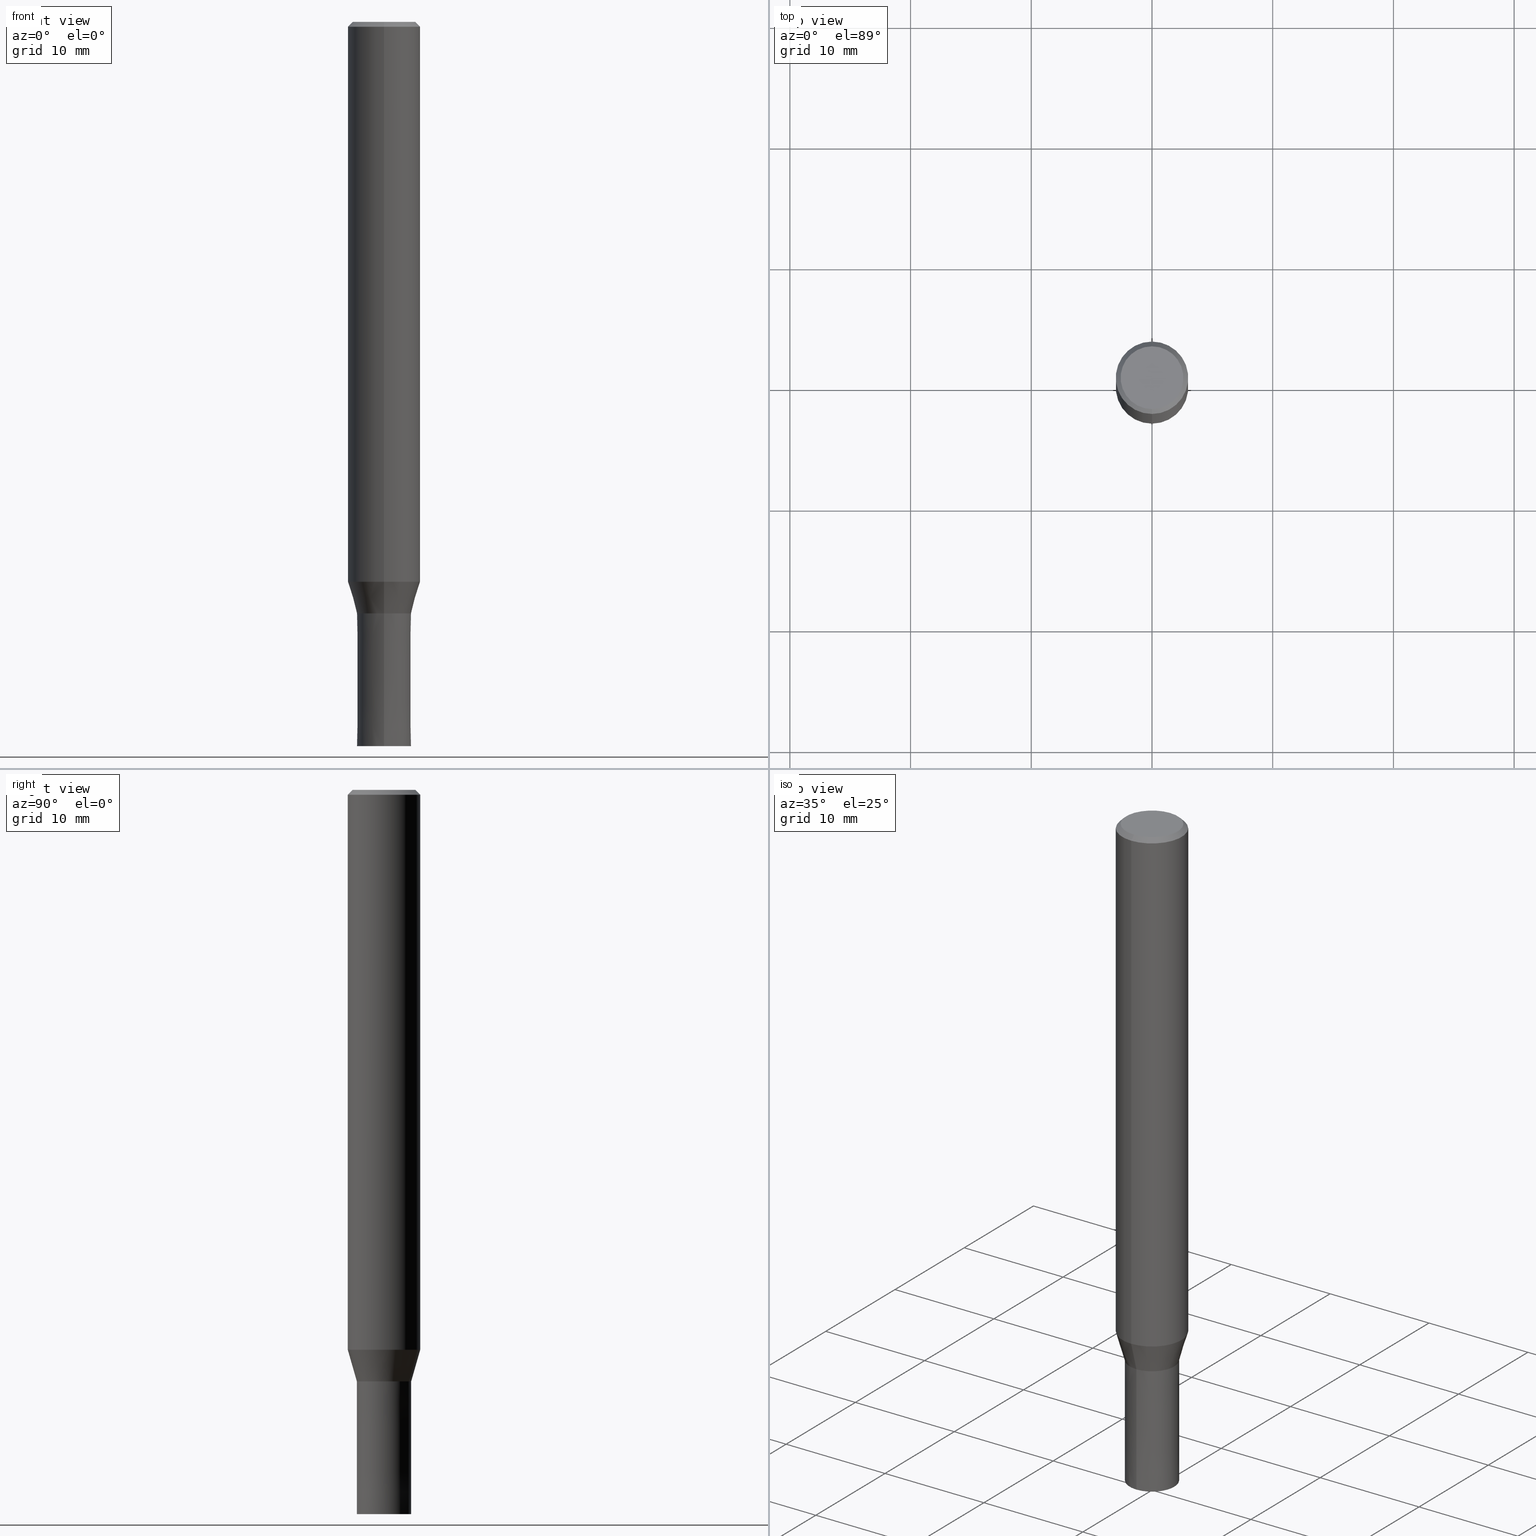
[diagram: canonical four-view strip — front | top / right | iso, engineering-drawing reading convention]
A machine part, canonical four-view strip (front | top / right | iso — engineering-drawing reading convention). The complete STEP part file that produces these views, byte-faithful:
ISO-10303-21;
HEADER;
FILE_DESCRIPTION(('no description'),'unknown implementation level');
FILE_NAME('CZS4045-1100-Huellk.stp','  ',('CIMSOURCE GmbH'),('CADClick - KiM GmbH - www.kimweb.de'),'unknown preprocess','ACIS','unknown authorization');
FILE_SCHEMA(('automotive_design'));
ENDSEC;
DATA;
#1=MECHANICAL_DESIGN_GEOMETRIC_PRESENTATION_REPRESENTATION(' ',(#14,#15,#16,#17,#18,#19,#20,#21,#22,#23,#24,#25,#26,#27,#28,#29,#30,#31,#32,#33,#34,#35,#36,#37,#38,#39,#40,#41,#42,#43,#44,#45,#46,#47,#48,#49,#50,#51,#52,#53,#54,#55,#56,#57,#58,#59,#60,#61,#62,#63,#64),#10);
#2=PRODUCT_DEFINITION_CONTEXT('',#65,'design');
#3=APPLICATION_PROTOCOL_DEFINITION('INTERNATIONAL STANDARD','automotive_design',1994,#65);
#4=PRODUCT_CATEGORY_RELATIONSHIP('NONE','NONE',#66,#67);
#5=SHAPE_DEFINITION_REPRESENTATION(#68,#69);
#6=PRODUCT_DEFINITION_CONTEXT('',#70,'design');
#7=APPLICATION_PROTOCOL_DEFINITION('INTERNATIONAL STANDARD','automotive_design',1994,#70);
#8=PRODUCT_CATEGORY_RELATIONSHIP('NONE','NONE',#71,#72);
#9=SHAPE_DEFINITION_REPRESENTATION(#73,#74);
#10= (GEOMETRIC_REPRESENTATION_CONTEXT(3)GLOBAL_UNCERTAINTY_ASSIGNED_CONTEXT((#77))GLOBAL_UNIT_ASSIGNED_CONTEXT((#79,#80,#81))REPRESENTATION_CONTEXT('NONE','WORKSPACE'));
#14=STYLED_ITEM('',(#83),#84);
#15=STYLED_ITEM('',(#85),#86);
#16=STYLED_ITEM('',(#87),#88);
#17=STYLED_ITEM('',(#89),#90);
#18=STYLED_ITEM('',(#91),#92);
#19=STYLED_ITEM('',(#93),#94);
#20=STYLED_ITEM('',(#95),#96);
#21=STYLED_ITEM('',(#97),#98);
#22=STYLED_ITEM('',(#99),#100);
#23=STYLED_ITEM('',(#101),#102);
#24=STYLED_ITEM('',(#103),#104);
#25=STYLED_ITEM('',(#105),#106);
#26=STYLED_ITEM('',(#107),#108);
#27=STYLED_ITEM('',(#109),#110);
#28=STYLED_ITEM('',(#111),#112);
#29=STYLED_ITEM('',(#113),#114);
#30=STYLED_ITEM('',(#115),#116);
#31=STYLED_ITEM('',(#117),#118);
#32=STYLED_ITEM('',(#119),#120);
#33=STYLED_ITEM('',(#121),#122);
#34=STYLED_ITEM('',(#123),#124);
#35=STYLED_ITEM('',(#125),#126);
#36=STYLED_ITEM('',(#127),#128);
#37=STYLED_ITEM('',(#129),#130);
#38=STYLED_ITEM('',(#131),#132);
#39=STYLED_ITEM('',(#133),#134);
#40=STYLED_ITEM('',(#135),#136);
#41=STYLED_ITEM('',(#137),#138);
#42=STYLED_ITEM('',(#139),#140);
#43=STYLED_ITEM('',(#141),#142);
#44=STYLED_ITEM('',(#143),#144);
#45=STYLED_ITEM('',(#145),#146);
#46=STYLED_ITEM('',(#147),#148);
#47=STYLED_ITEM('',(#149),#150);
#48=STYLED_ITEM('',(#151),#152);
#49=STYLED_ITEM('',(#153),#154);
#50=STYLED_ITEM('',(#155),#156);
#51=STYLED_ITEM('',(#157),#158);
#52=STYLED_ITEM('',(#159),#160);
#53=STYLED_ITEM('',(#161),#162);
#54=STYLED_ITEM('',(#163),#164);
#55=STYLED_ITEM('',(#165),#166);
#56=STYLED_ITEM('',(#167),#168);
#57=STYLED_ITEM('',(#169),#170);
#58=STYLED_ITEM('',(#171),#172);
#59=STYLED_ITEM('',(#173),#174);
#60=STYLED_ITEM('',(#175),#176);
#61=STYLED_ITEM('',(#177),#178);
#62=STYLED_ITEM('',(#179),#180);
#63=STYLED_ITEM('',(#181),#182);
#64=STYLED_ITEM('',(#183),#184);
#65=APPLICATION_CONTEXT(' ');
#66=PRODUCT_CATEGORY('part','NONE');
#67=PRODUCT_RELATED_PRODUCT_CATEGORY('detail',' ',(#185));
#68=PRODUCT_DEFINITION_SHAPE('NONE','NONE',#186);
#69=ADVANCED_BREP_SHAPE_REPRESENTATION('1',(#174,#187),#10);
#70=APPLICATION_CONTEXT(' ');
#71=PRODUCT_CATEGORY('part','NONE');
#72=PRODUCT_RELATED_PRODUCT_CATEGORY('detail',' ',(#188));
#73=PRODUCT_DEFINITION_SHAPE('NONE','NONE',#189);
#74=ADVANCED_BREP_SHAPE_REPRESENTATION('2',(#158,#190),#10);
#77=UNCERTAINTY_MEASURE_WITH_UNIT(LENGTH_MEASURE(1.0E-006),#79,'','');
#79= (CONVERSION_BASED_UNIT('MILLIMETRE',#193)LENGTH_UNIT()NAMED_UNIT(#196));
#80= (NAMED_UNIT(#198)PLANE_ANGLE_UNIT()SI_UNIT($,.RADIAN.));
#81= (NAMED_UNIT(#198)SOLID_ANGLE_UNIT()SI_UNIT($,.STERADIAN.));
#83=PRESENTATION_STYLE_ASSIGNMENT((#204));
#84=EDGE_CURVE('',#160,#142,#205,.T.);
#85=PRESENTATION_STYLE_ASSIGNMENT((#206));
#86=VERTEX_POINT('',#207);
#87=PRESENTATION_STYLE_ASSIGNMENT((#208));
#88=ADVANCED_FACE('',(#209),#210,.T.);
#89=PRESENTATION_STYLE_ASSIGNMENT((#211));
#90=EDGE_CURVE('',#148,#86,#212,.T.);
#91=PRESENTATION_STYLE_ASSIGNMENT((#213));
#92=EDGE_CURVE('',#156,#86,#214,.T.);
#93=PRESENTATION_STYLE_ASSIGNMENT((#215));
#94=ADVANCED_FACE('',(#216),#217,.T.);
#95=PRESENTATION_STYLE_ASSIGNMENT((#218));
#96=EDGE_CURVE('',#108,#156,#219,.T.);
#97=PRESENTATION_STYLE_ASSIGNMENT((#220));
#98=EDGE_CURVE('',#86,#148,#221,.T.);
#99=PRESENTATION_STYLE_ASSIGNMENT((#222));
#100=ADVANCED_FACE('',(#223),#224,.T.);
#101=PRESENTATION_STYLE_ASSIGNMENT((#225));
#102=VERTEX_POINT('',#226);
#103=PRESENTATION_STYLE_ASSIGNMENT((#227));
#104=EDGE_CURVE('',#156,#108,#228,.T.);
#105=PRESENTATION_STYLE_ASSIGNMENT((#229));
#106=EDGE_CURVE('',#176,#154,#230,.T.);
#107=PRESENTATION_STYLE_ASSIGNMENT((#231));
#108=VERTEX_POINT('',#232);
#109=PRESENTATION_STYLE_ASSIGNMENT((#233));
#110=ADVANCED_FACE('',(#234),#235,.T.);
#111=PRESENTATION_STYLE_ASSIGNMENT((#236));
#112=ADVANCED_FACE('',(#237),#238,.T.);
#113=PRESENTATION_STYLE_ASSIGNMENT((#239));
#114=EDGE_CURVE('',#130,#154,#240,.T.);
#115=PRESENTATION_STYLE_ASSIGNMENT((#241));
#116=ADVANCED_FACE('',(#242),#243,.T.);
#117=PRESENTATION_STYLE_ASSIGNMENT((#244));
#118=EDGE_CURVE('',#102,#160,#245,.T.);
#119=PRESENTATION_STYLE_ASSIGNMENT((#246));
#120=EDGE_CURVE('',#148,#108,#247,.T.);
#121=PRESENTATION_STYLE_ASSIGNMENT((#248));
#122=EDGE_CURVE('',#182,#152,#249,.T.);
#123=PRESENTATION_STYLE_ASSIGNMENT((#250));
#124=VERTEX_POINT('',#251);
#125=PRESENTATION_STYLE_ASSIGNMENT((#252));
#126=EDGE_CURVE('',#152,#182,#253,.T.);
#127=PRESENTATION_STYLE_ASSIGNMENT((#254));
#128=ADVANCED_FACE('',(#255),#256,.T.);
#129=PRESENTATION_STYLE_ASSIGNMENT((#257));
#130=VERTEX_POINT('',#258);
#131=PRESENTATION_STYLE_ASSIGNMENT((#259));
#132=ADVANCED_FACE('',(#260),#261,.T.);
#133=PRESENTATION_STYLE_ASSIGNMENT((#262));
#134=EDGE_CURVE('',#176,#180,#263,.T.);
#135=PRESENTATION_STYLE_ASSIGNMENT((#264));
#136=EDGE_CURVE('',#154,#176,#265,.T.);
#137=PRESENTATION_STYLE_ASSIGNMENT((#266));
#138=EDGE_CURVE('',#124,#182,#267,.T.);
#139=PRESENTATION_STYLE_ASSIGNMENT((#268));
#140=EDGE_CURVE('',#124,#102,#269,.T.);
#141=PRESENTATION_STYLE_ASSIGNMENT((#270));
#142=VERTEX_POINT('',#271);
#143=PRESENTATION_STYLE_ASSIGNMENT((#272));
#144=EDGE_CURVE('',#180,#130,#273,.T.);
#145=PRESENTATION_STYLE_ASSIGNMENT((#274));
#146=ADVANCED_FACE('',(#275),#276,.T.);
#147=PRESENTATION_STYLE_ASSIGNMENT((#277));
#148=VERTEX_POINT('',#278);
#149=PRESENTATION_STYLE_ASSIGNMENT((#279));
#150=EDGE_CURVE('',#152,#102,#280,.T.);
#151=PRESENTATION_STYLE_ASSIGNMENT((#281));
#152=VERTEX_POINT('',#282);
#153=PRESENTATION_STYLE_ASSIGNMENT((#283));
#154=VERTEX_POINT('',#284);
#155=PRESENTATION_STYLE_ASSIGNMENT((#285));
#156=VERTEX_POINT('',#286);
#157=PRESENTATION_STYLE_ASSIGNMENT((#287));
#158=MANIFOLD_SOLID_BREP('2',#288);
#159=PRESENTATION_STYLE_ASSIGNMENT((#289));
#160=VERTEX_POINT('',#290);
#161=PRESENTATION_STYLE_ASSIGNMENT((#291));
#162=EDGE_CURVE('',#142,#160,#292,.T.);
#163=PRESENTATION_STYLE_ASSIGNMENT((#293));
#164=ADVANCED_FACE('',(#294),#295,.T.);
#165=PRESENTATION_STYLE_ASSIGNMENT((#296));
#166=ADVANCED_FACE('',(#297),#298,.T.);
#167=PRESENTATION_STYLE_ASSIGNMENT((#299));
#168=EDGE_CURVE('',#102,#124,#300,.T.);
#169=PRESENTATION_STYLE_ASSIGNMENT((#301));
#170=ADVANCED_FACE('',(#302,#303),#304,.T.);
#171=PRESENTATION_STYLE_ASSIGNMENT((#305));
#172=ADVANCED_FACE('',(#306),#307,.T.);
#173=PRESENTATION_STYLE_ASSIGNMENT((#308));
#174=MANIFOLD_SOLID_BREP('1',#309);
#175=PRESENTATION_STYLE_ASSIGNMENT((#310));
#176=VERTEX_POINT('',#311);
#177=PRESENTATION_STYLE_ASSIGNMENT((#312));
#178=EDGE_CURVE('',#130,#180,#313,.T.);
#179=PRESENTATION_STYLE_ASSIGNMENT((#314));
#180=VERTEX_POINT('',#315);
#181=PRESENTATION_STYLE_ASSIGNMENT((#316));
#182=VERTEX_POINT('',#317);
#183=PRESENTATION_STYLE_ASSIGNMENT((#318));
#184=EDGE_CURVE('',#142,#124,#319,.T.);
#185=PRODUCT('1','1','PART-1-DESC',(#320));
#186=PRODUCT_DEFINITION('NONE','NONE',#321,#2);
#187=AXIS2_PLACEMENT_3D('',#322,#323,#324);
#188=PRODUCT('2','2','PART-2-DESC',(#325));
#189=PRODUCT_DEFINITION('NONE','NONE',#326,#6);
#190=AXIS2_PLACEMENT_3D('',#327,#328,#329);
#193=LENGTH_MEASURE_WITH_UNIT(LENGTH_MEASURE(1.0),#330);
#196=DIMENSIONAL_EXPONENTS(1.0,0.0,0.0,0.0,0.0,0.0,0.0);
#198=DIMENSIONAL_EXPONENTS(0.0,0.0,0.0,0.0,0.0,0.0,0.0);
#204=CURVE_STYLE('',#331,POSITIVE_LENGTH_MEASURE(1.0E-006),#332);
#205=CIRCLE('',#333,2.6);
#206=POINT_STYLE(' ',#334,POSITIVE_LENGTH_MEASURE(1.0E-006),#335);
#207=CARTESIAN_POINT('',(2.75524183546497E-016,-2.2499,-49.0));
#208=SURFACE_STYLE_USAGE(.BOTH.,#336);
#209=FACE_OUTER_BOUND('',#337,.T.);
#210=CONICAL_SURFACE('',#338,2.8,0.78539816339745);
#211=CURVE_STYLE('',#339,POSITIVE_LENGTH_MEASURE(1.0E-006),#340);
#212=CIRCLE('',#341,2.2499);
#213=CURVE_STYLE('',#342,POSITIVE_LENGTH_MEASURE(1.0E-006),#343);
#214=LINE('',#344,#345);
#215=SURFACE_STYLE_USAGE(.BOTH.,#346);
#216=FACE_OUTER_BOUND('',#347,.T.);
#217=CYLINDRICAL_SURFACE('',#348,3.0);
#218=CURVE_STYLE('',#349,POSITIVE_LENGTH_MEASURE(1.0E-006),#350);
#219=CIRCLE('',#351,2.25);
#220=CURVE_STYLE('',#352,POSITIVE_LENGTH_MEASURE(1.0E-006),#353);
#221=CIRCLE('',#354,2.2499);
#222=SURFACE_STYLE_USAGE(.BOTH.,#355);
#223=FACE_OUTER_BOUND('',#356,.T.);
#224=CONICAL_SURFACE('',#357,2.62495,0.279208199033747);
#225=POINT_STYLE(' ',#358,POSITIVE_LENGTH_MEASURE(1.0E-006),#359);
#226=CARTESIAN_POINT('',(3.67381906146713E-016,-3.0,-0.399999999999999));
#227=CURVE_STYLE('',#360,POSITIVE_LENGTH_MEASURE(1.0E-006),#361);
#228=CIRCLE('',#362,2.25);
#229=CURVE_STYLE('',#363,POSITIVE_LENGTH_MEASURE(1.0E-006),#364);
#230=CIRCLE('',#365,2.24995);
#231=POINT_STYLE(' ',#366,POSITIVE_LENGTH_MEASURE(1.0E-006),#367);
#232=CARTESIAN_POINT('',(0.0,2.25,-60.0));
#233=SURFACE_STYLE_USAGE(.BOTH.,#368);
#234=FACE_OUTER_BOUND('',#369,.T.);
#235=PLANE('',#370);
#236=SURFACE_STYLE_USAGE(.BOTH.,#371);
#237=FACE_OUTER_BOUND('',#372,.T.);
#238=CONICAL_SURFACE('',#373,2.62495,0.279208199033747);
#239=CURVE_STYLE('',#374,POSITIVE_LENGTH_MEASURE(1.0E-006),#375);
#240=LINE('',#376,#377);
#241=SURFACE_STYLE_USAGE(.BOTH.,#378);
#242=FACE_OUTER_BOUND('',#379,.T.);
#243=PLANE('',#380);
#244=CURVE_STYLE('',#381,POSITIVE_LENGTH_MEASURE(1.0E-006),#382);
#245=LINE('',#383,#384);
#246=CURVE_STYLE('',#385,POSITIVE_LENGTH_MEASURE(1.0E-006),#386);
#247=LINE('',#387,#388);
#248=CURVE_STYLE('',#389,POSITIVE_LENGTH_MEASURE(1.0E-006),#390);
#249=CIRCLE('',#391,3.0);
#250=POINT_STYLE(' ',#392,POSITIVE_LENGTH_MEASURE(1.0E-006),#393);
#251=CARTESIAN_POINT('',(0.0,3.0,-0.399999999999999));
#252=CURVE_STYLE('',#394,POSITIVE_LENGTH_MEASURE(1.0E-006),#395);
#253=CIRCLE('',#396,3.0);
#254=SURFACE_STYLE_USAGE(.BOTH.,#397);
#255=FACE_OUTER_BOUND('',#398,.T.);
#256=CONICAL_SURFACE('',#399,2.24995,9.09090909067784E-006);
#257=POINT_STYLE(' ',#400,POSITIVE_LENGTH_MEASURE(1.0E-006),#401);
#258=CARTESIAN_POINT('',(0.0,2.99995,-46.384));
#259=SURFACE_STYLE_USAGE(.BOTH.,#402);
#260=FACE_OUTER_BOUND('',#403,.T.);
#261=CONICAL_SURFACE('',#404,2.8,0.78539816339745);
#262=CURVE_STYLE('',#405,POSITIVE_LENGTH_MEASURE(1.0E-006),#406);
#263=LINE('',#407,#408);
#264=CURVE_STYLE('',#409,POSITIVE_LENGTH_MEASURE(1.0E-006),#410);
#265=CIRCLE('',#411,2.24995);
#266=CURVE_STYLE('',#412,POSITIVE_LENGTH_MEASURE(1.0E-006),#413);
#267=LINE('',#414,#415);
#268=CURVE_STYLE('',#416,POSITIVE_LENGTH_MEASURE(1.0E-006),#417);
#269=CIRCLE('',#418,3.0);
#270=POINT_STYLE(' ',#419,POSITIVE_LENGTH_MEASURE(1.0E-006),#420);
#271=CARTESIAN_POINT('',(0.0,2.6,0.0));
#272=CURVE_STYLE('',#421,POSITIVE_LENGTH_MEASURE(1.0E-006),#422);
#273=CIRCLE('',#423,2.99995);
#274=SURFACE_STYLE_USAGE(.BOTH.,#424);
#275=FACE_OUTER_BOUND('',#425,.T.);
#276=CYLINDRICAL_SURFACE('',#426,3.0);
#277=POINT_STYLE(' ',#427,POSITIVE_LENGTH_MEASURE(1.0E-006),#428);
#278=CARTESIAN_POINT('',(0.0,2.2499,-49.0));
#279=CURVE_STYLE('',#429,POSITIVE_LENGTH_MEASURE(1.0E-006),#430);
#280=LINE('',#431,#432);
#281=POINT_STYLE(' ',#433,POSITIVE_LENGTH_MEASURE(1.0E-006),#434);
#282=CARTESIAN_POINT('',(3.67381906146713E-016,-3.0,-46.384));
#283=POINT_STYLE(' ',#435,POSITIVE_LENGTH_MEASURE(1.0E-006),#436);
#284=CARTESIAN_POINT('',(0.0,2.24995,-49.0));
#285=POINT_STYLE(' ',#437,POSITIVE_LENGTH_MEASURE(1.0E-006),#438);
#286=CARTESIAN_POINT('',(2.75536429610035E-016,-2.25,-60.0));
#287=SURFACE_STYLE_USAGE(.BOTH.,#439);
#288=CLOSED_SHELL('',(#166,#110,#128,#164));
#289=POINT_STYLE(' ',#440,POSITIVE_LENGTH_MEASURE(1.0E-006),#441);
#290=CARTESIAN_POINT('',(3.18397651993818E-016,-2.6,0.0));
#291=CURVE_STYLE('',#442,POSITIVE_LENGTH_MEASURE(1.0E-006),#443);
#292=CIRCLE('',#444,2.6);
#293=SURFACE_STYLE_USAGE(.BOTH.,#445);
#294=FACE_OUTER_BOUND('',#446,.T.);
#295=PLANE('',#447);
#296=SURFACE_STYLE_USAGE(.BOTH.,#448);
#297=FACE_OUTER_BOUND('',#449,.T.);
#298=CONICAL_SURFACE('',#450,2.24995,9.09090909067784E-006);
#299=CURVE_STYLE('',#451,POSITIVE_LENGTH_MEASURE(1.0E-006),#452);
#300=CIRCLE('',#453,3.0);
#301=SURFACE_STYLE_USAGE(.BOTH.,#454);
#302=FACE_OUTER_BOUND('',#455,.T.);
#303=FACE_BOUND('',#456,.T.);
#304=PLANE('',#457);
#305=SURFACE_STYLE_USAGE(.BOTH.,#458);
#306=FACE_OUTER_BOUND('',#459,.T.);
#307=PLANE('',#460);
#308=SURFACE_STYLE_USAGE(.BOTH.,#461);
#309=CLOSED_SHELL('',(#100,#94,#88,#170,#116,#132,#146,#112,#172));
#310=POINT_STYLE(' ',#462,POSITIVE_LENGTH_MEASURE(1.0E-006),#463);
#311=CARTESIAN_POINT('',(2.75530306578266E-016,-2.24995,-49.0));
#312=CURVE_STYLE('',#464,POSITIVE_LENGTH_MEASURE(1.0E-006),#465);
#313=CIRCLE('',#466,2.99995);
#314=POINT_STYLE(' ',#467,POSITIVE_LENGTH_MEASURE(1.0E-006),#468);
#315=CARTESIAN_POINT('',(3.67375783114944E-016,-2.99995,-46.384));
#316=POINT_STYLE(' ',#469,POSITIVE_LENGTH_MEASURE(1.0E-006),#470);
#317=CARTESIAN_POINT('',(0.0,3.0,-46.384));
#318=CURVE_STYLE('',#471,POSITIVE_LENGTH_MEASURE(1.0E-006),#472);
#319=LINE('',#473,#474);
#320=PRODUCT_CONTEXT('',#65,'mechanical');
#321=PRODUCT_DEFINITION_FORMATION_WITH_SPECIFIED_SOURCE(' ','NONE',#185,.NOT_KNOWN.);
#322=CARTESIAN_POINT('',(0.0,0.0,0.0));
#323=DIRECTION('',(0.0,0.0,1.0));
#324=DIRECTION('',(1.0,0.0,0.0));
#325=PRODUCT_CONTEXT('',#70,'mechanical');
#326=PRODUCT_DEFINITION_FORMATION_WITH_SPECIFIED_SOURCE(' ','NONE',#188,.NOT_KNOWN.);
#327=CARTESIAN_POINT('',(0.0,0.0,0.0));
#328=DIRECTION('',(0.0,0.0,1.0));
#329=DIRECTION('',(1.0,0.0,0.0));
#330= (NAMED_UNIT(#196)LENGTH_UNIT()SI_UNIT(.MILLI.,.METRE.));
#331=DRAUGHTING_PRE_DEFINED_CURVE_FONT('continuous');
#332=COLOUR_RGB('',0.498039215803146,0.498039215803146,0.498039215803146);
#333=AXIS2_PLACEMENT_3D('',#476,#477,#478);
#334=PRE_DEFINED_MARKER('');
#335=COLOUR_RGB('',0.800000011920929,0.800000011920929,0.800000011920929);
#336=SURFACE_SIDE_STYLE('',(#479));
#337=EDGE_LOOP('',(#480,#481,#482,#483));
#338=AXIS2_PLACEMENT_3D('',#484,#485,#486);
#339=DRAUGHTING_PRE_DEFINED_CURVE_FONT('continuous');
#340=COLOUR_RGB('',0.800000011920929,0.800000011920929,0.800000011920929);
#341=AXIS2_PLACEMENT_3D('',#487,#488,#489);
#342=DRAUGHTING_PRE_DEFINED_CURVE_FONT('continuous');
#343=COLOUR_RGB('',0.800000011920929,0.800000011920929,0.800000011920929);
#344=CARTESIAN_POINT('',(2.75530306578266E-016,-2.24995,-54.5));
#345=VECTOR('',#490,1.0);
#346=SURFACE_SIDE_STYLE('',(#491));
#347=EDGE_LOOP('',(#492,#493,#494,#495));
#348=AXIS2_PLACEMENT_3D('',#496,#497,#498);
#349=DRAUGHTING_PRE_DEFINED_CURVE_FONT('continuous');
#350=COLOUR_RGB('',0.800000011920929,0.800000011920929,0.800000011920929);
#351=AXIS2_PLACEMENT_3D('',#499,#500,#501);
#352=DRAUGHTING_PRE_DEFINED_CURVE_FONT('continuous');
#353=COLOUR_RGB('',0.800000011920929,0.800000011920929,0.800000011920929);
#354=AXIS2_PLACEMENT_3D('',#502,#503,#504);
#355=SURFACE_SIDE_STYLE('',(#505));
#356=EDGE_LOOP('',(#506,#507,#508,#509));
#357=AXIS2_PLACEMENT_3D('',#510,#511,#512);
#358=PRE_DEFINED_MARKER('');
#359=COLOUR_RGB('',0.498039215803146,0.498039215803146,0.498039215803146);
#360=DRAUGHTING_PRE_DEFINED_CURVE_FONT('continuous');
#361=COLOUR_RGB('',0.800000011920929,0.800000011920929,0.800000011920929);
#362=AXIS2_PLACEMENT_3D('',#513,#514,#515);
#363=DRAUGHTING_PRE_DEFINED_CURVE_FONT('continuous');
#364=COLOUR_RGB('',0.498039215803146,0.498039215803146,0.498039215803146);
#365=AXIS2_PLACEMENT_3D('',#516,#517,#518);
#366=PRE_DEFINED_MARKER('');
#367=COLOUR_RGB('',0.800000011920929,0.800000011920929,0.800000011920929);
#368=SURFACE_SIDE_STYLE('',(#519));
#369=EDGE_LOOP('',(#520,#521));
#370=AXIS2_PLACEMENT_3D('',#522,#523,#524);
#371=SURFACE_SIDE_STYLE('',(#525));
#372=EDGE_LOOP('',(#526,#527,#528,#529));
#373=AXIS2_PLACEMENT_3D('',#530,#531,#532);
#374=DRAUGHTING_PRE_DEFINED_CURVE_FONT('continuous');
#375=COLOUR_RGB('',0.498039215803146,0.498039215803146,0.498039215803146);
#376=CARTESIAN_POINT('',(-3.21453044846605E-016,2.62495,-47.692));
#377=VECTOR('',#533,1.0);
#378=SURFACE_SIDE_STYLE('',(#534));
#379=EDGE_LOOP('',(#535,#536));
#380=AXIS2_PLACEMENT_3D('',#537,#538,#539);
#381=DRAUGHTING_PRE_DEFINED_CURVE_FONT('continuous');
#382=COLOUR_RGB('',0.498039215803146,0.498039215803146,0.498039215803146);
#383=CARTESIAN_POINT('',(3.42889779070266E-016,-2.8,-0.200000000000003));
#384=VECTOR('',#540,1.0);
#385=DRAUGHTING_PRE_DEFINED_CURVE_FONT('continuous');
#386=COLOUR_RGB('',0.800000011920929,0.800000011920929,0.800000011920929);
#387=CARTESIAN_POINT('',(-2.75530306578266E-016,2.24995,-54.5));
#388=VECTOR('',#541,1.0);
#389=DRAUGHTING_PRE_DEFINED_CURVE_FONT('continuous');
#390=COLOUR_RGB('',0.498039215803146,0.498039215803146,0.498039215803146);
#391=AXIS2_PLACEMENT_3D('',#542,#543,#544);
#392=PRE_DEFINED_MARKER('');
#393=COLOUR_RGB('',0.498039215803146,0.498039215803146,0.498039215803146);
#394=DRAUGHTING_PRE_DEFINED_CURVE_FONT('continuous');
#395=COLOUR_RGB('',0.498039215803146,0.498039215803146,0.498039215803146);
#396=AXIS2_PLACEMENT_3D('',#545,#546,#547);
#397=SURFACE_SIDE_STYLE('',(#548));
#398=EDGE_LOOP('',(#549,#550,#551,#552));
#399=AXIS2_PLACEMENT_3D('',#553,#554,#555);
#400=PRE_DEFINED_MARKER('');
#401=COLOUR_RGB('',0.498039215803146,0.498039215803146,0.498039215803146);
#402=SURFACE_SIDE_STYLE('',(#556));
#403=EDGE_LOOP('',(#557,#558,#559,#560));
#404=AXIS2_PLACEMENT_3D('',#561,#562,#563);
#405=DRAUGHTING_PRE_DEFINED_CURVE_FONT('continuous');
#406=COLOUR_RGB('',0.498039215803146,0.498039215803146,0.498039215803146);
#407=CARTESIAN_POINT('',(3.21453044846605E-016,-2.62495,-47.692));
#408=VECTOR('',#564,1.0);
#409=DRAUGHTING_PRE_DEFINED_CURVE_FONT('continuous');
#410=COLOUR_RGB('',0.498039215803146,0.498039215803146,0.498039215803146);
#411=AXIS2_PLACEMENT_3D('',#565,#566,#567);
#412=DRAUGHTING_PRE_DEFINED_CURVE_FONT('continuous');
#413=COLOUR_RGB('',0.498039215803146,0.498039215803146,0.498039215803146);
#414=CARTESIAN_POINT('',(-3.67381906146713E-016,3.0,-23.392));
#415=VECTOR('',#568,1.0);
#416=DRAUGHTING_PRE_DEFINED_CURVE_FONT('continuous');
#417=COLOUR_RGB('',0.498039215803146,0.498039215803146,0.498039215803146);
#418=AXIS2_PLACEMENT_3D('',#569,#570,#571);
#419=PRE_DEFINED_MARKER('');
#420=COLOUR_RGB('',0.498039215803146,0.498039215803146,0.498039215803146);
#421=DRAUGHTING_PRE_DEFINED_CURVE_FONT('continuous');
#422=COLOUR_RGB('',0.498039215803146,0.498039215803146,0.498039215803146);
#423=AXIS2_PLACEMENT_3D('',#572,#573,#574);
#424=SURFACE_SIDE_STYLE('',(#575));
#425=EDGE_LOOP('',(#576,#577,#578,#579));
#426=AXIS2_PLACEMENT_3D('',#580,#581,#582);
#427=PRE_DEFINED_MARKER('');
#428=COLOUR_RGB('',0.800000011920929,0.800000011920929,0.800000011920929);
#429=DRAUGHTING_PRE_DEFINED_CURVE_FONT('continuous');
#430=COLOUR_RGB('',0.498039215803146,0.498039215803146,0.498039215803146);
#431=CARTESIAN_POINT('',(3.67381906146713E-016,-3.0,-23.392));
#432=VECTOR('',#583,1.0);
#433=PRE_DEFINED_MARKER('');
#434=COLOUR_RGB('',0.498039215803146,0.498039215803146,0.498039215803146);
#435=PRE_DEFINED_MARKER('');
#436=COLOUR_RGB('',0.498039215803146,0.498039215803146,0.498039215803146);
#437=PRE_DEFINED_MARKER('');
#438=COLOUR_RGB('',0.800000011920929,0.800000011920929,0.800000011920929);
#439=SURFACE_SIDE_STYLE('',(#584));
#440=PRE_DEFINED_MARKER('');
#441=COLOUR_RGB('',0.498039215803146,0.498039215803146,0.498039215803146);
#442=DRAUGHTING_PRE_DEFINED_CURVE_FONT('continuous');
#443=COLOUR_RGB('',0.498039215803146,0.498039215803146,0.498039215803146);
#444=AXIS2_PLACEMENT_3D('',#585,#586,#587);
#445=SURFACE_SIDE_STYLE('',(#588));
#446=EDGE_LOOP('',(#589,#590));
#447=AXIS2_PLACEMENT_3D('',#591,#592,#593);
#448=SURFACE_SIDE_STYLE('',(#594));
#449=EDGE_LOOP('',(#595,#596,#597,#598));
#450=AXIS2_PLACEMENT_3D('',#599,#600,#601);
#451=DRAUGHTING_PRE_DEFINED_CURVE_FONT('continuous');
#452=COLOUR_RGB('',0.498039215803146,0.498039215803146,0.498039215803146);
#453=AXIS2_PLACEMENT_3D('',#602,#603,#604);
#454=SURFACE_SIDE_STYLE('',(#605));
#455=EDGE_LOOP('',(#606,#607));
#456=EDGE_LOOP('',(#608,#609));
#457=AXIS2_PLACEMENT_3D('',#610,#611,#612);
#458=SURFACE_SIDE_STYLE('',(#613));
#459=EDGE_LOOP('',(#614,#615));
#460=AXIS2_PLACEMENT_3D('',#616,#617,#618);
#461=SURFACE_SIDE_STYLE('',(#619));
#462=PRE_DEFINED_MARKER('');
#463=COLOUR_RGB('',0.498039215803146,0.498039215803146,0.498039215803146);
#464=DRAUGHTING_PRE_DEFINED_CURVE_FONT('continuous');
#465=COLOUR_RGB('',0.498039215803146,0.498039215803146,0.498039215803146);
#466=AXIS2_PLACEMENT_3D('',#620,#621,#622);
#467=PRE_DEFINED_MARKER('');
#468=COLOUR_RGB('',0.498039215803146,0.498039215803146,0.498039215803146);
#469=PRE_DEFINED_MARKER('');
#470=COLOUR_RGB('',0.498039215803146,0.498039215803146,0.498039215803146);
#471=DRAUGHTING_PRE_DEFINED_CURVE_FONT('continuous');
#472=COLOUR_RGB('',0.498039215803146,0.498039215803146,0.498039215803146);
#473=CARTESIAN_POINT('',(-3.42889779070266E-016,2.8,-0.200000000000003));
#474=VECTOR('',#623,1.0);
#476=CARTESIAN_POINT('',(0.0,0.0,0.0));
#477=DIRECTION('',(0.0,0.0,-1.0));
#478=DIRECTION('',(0.0,1.0,0.0));
#479=SURFACE_STYLE_FILL_AREA(#624);
#480=ORIENTED_EDGE('',*,*,#184,.F.);
#481=ORIENTED_EDGE('',*,*,#162,.T.);
#482=ORIENTED_EDGE('',*,*,#118,.F.);
#483=ORIENTED_EDGE('',*,*,#140,.F.);
#484=CARTESIAN_POINT('',(0.0,0.0,-0.200000000000003));
#485=DIRECTION('',(0.0,-0.0,-1.0));
#486=DIRECTION('',(0.0,1.0,0.0));
#487=CARTESIAN_POINT('',(0.0,0.0,-49.0));
#488=DIRECTION('',(0.0,0.0,-1.0));
#489=DIRECTION('',(0.0,1.0,0.0));
#490=DIRECTION('',(-1.11327850343123E-021,9.09090909055262E-006,0.999999999958678));
#491=SURFACE_STYLE_FILL_AREA(#625);
#492=ORIENTED_EDGE('',*,*,#138,.F.);
#493=ORIENTED_EDGE('',*,*,#140,.T.);
#494=ORIENTED_EDGE('',*,*,#150,.F.);
#495=ORIENTED_EDGE('',*,*,#122,.F.);
#496=CARTESIAN_POINT('',(0.0,0.0,-23.392));
#497=DIRECTION('',(-0.0,-0.0,1.0));
#498=DIRECTION('',(0.0,1.0,0.0));
#499=CARTESIAN_POINT('',(0.0,0.0,-60.0));
#500=DIRECTION('',(0.0,0.0,-1.0));
#501=DIRECTION('',(0.0,1.0,0.0));
#502=CARTESIAN_POINT('',(0.0,0.0,-49.0));
#503=DIRECTION('',(0.0,0.0,-1.0));
#504=DIRECTION('',(0.0,1.0,0.0));
#505=SURFACE_STYLE_FILL_AREA(#626);
#506=ORIENTED_EDGE('',*,*,#114,.F.);
#507=ORIENTED_EDGE('',*,*,#178,.T.);
#508=ORIENTED_EDGE('',*,*,#134,.F.);
#509=ORIENTED_EDGE('',*,*,#136,.F.);
#510=CARTESIAN_POINT('',(0.0,0.0,-47.692));
#511=DIRECTION('',(-0.0,-0.0,1.0));
#512=DIRECTION('',(0.0,1.0,0.0));
#513=CARTESIAN_POINT('',(0.0,0.0,-60.0));
#514=DIRECTION('',(0.0,0.0,-1.0));
#515=DIRECTION('',(0.0,1.0,0.0));
#516=CARTESIAN_POINT('',(0.0,0.0,-49.0));
#517=DIRECTION('',(0.0,0.0,-1.0));
#518=DIRECTION('',(0.0,1.0,0.0));
#519=SURFACE_STYLE_FILL_AREA(#627);
#520=ORIENTED_EDGE('',*,*,#90,.F.);
#521=ORIENTED_EDGE('',*,*,#98,.F.);
#522=CARTESIAN_POINT('',(0.0,1.12495,-49.0));
#523=DIRECTION('',(-0.0,0.0,1.0));
#524=DIRECTION('',(0.0,-1.0,0.0));
#525=SURFACE_STYLE_FILL_AREA(#628);
#526=ORIENTED_EDGE('',*,*,#114,.T.);
#527=ORIENTED_EDGE('',*,*,#106,.F.);
#528=ORIENTED_EDGE('',*,*,#134,.T.);
#529=ORIENTED_EDGE('',*,*,#144,.T.);
#530=CARTESIAN_POINT('',(0.0,0.0,-47.692));
#531=DIRECTION('',(-0.0,-0.0,1.0));
#532=DIRECTION('',(0.0,1.0,0.0));
#533=DIRECTION('',(3.37494895041124E-017,-0.275594597388538,-0.961273955691222));
#534=SURFACE_STYLE_FILL_AREA(#629);
#535=ORIENTED_EDGE('',*,*,#162,.F.);
#536=ORIENTED_EDGE('',*,*,#84,.F.);
#537=CARTESIAN_POINT('',(0.0,1.3,0.0));
#538=DIRECTION('',(-0.0,0.0,1.0));
#539=DIRECTION('',(0.0,-1.0,0.0));
#540=DIRECTION('',(-8.65927457071937E-017,0.707106781186549,0.707106781186546));
#541=DIRECTION('',(-1.11327850343124E-021,9.09090909055262E-006,-0.999999999958678));
#542=CARTESIAN_POINT('',(0.0,0.0,-46.384));
#543=DIRECTION('',(0.0,0.0,-1.0));
#544=DIRECTION('',(0.0,1.0,0.0));
#545=CARTESIAN_POINT('',(0.0,0.0,-46.384));
#546=DIRECTION('',(0.0,0.0,-1.0));
#547=DIRECTION('',(0.0,1.0,0.0));
#548=SURFACE_STYLE_FILL_AREA(#630);
#549=ORIENTED_EDGE('',*,*,#120,.T.);
#550=ORIENTED_EDGE('',*,*,#104,.F.);
#551=ORIENTED_EDGE('',*,*,#92,.T.);
#552=ORIENTED_EDGE('',*,*,#98,.T.);
#553=CARTESIAN_POINT('',(0.0,0.0,-54.5));
#554=DIRECTION('',(0.0,-0.0,-1.0));
#555=DIRECTION('',(0.0,1.0,0.0));
#556=SURFACE_STYLE_FILL_AREA(#631);
#557=ORIENTED_EDGE('',*,*,#184,.T.);
#558=ORIENTED_EDGE('',*,*,#168,.F.);
#559=ORIENTED_EDGE('',*,*,#118,.T.);
#560=ORIENTED_EDGE('',*,*,#84,.T.);
#561=CARTESIAN_POINT('',(0.0,0.0,-0.200000000000003));
#562=DIRECTION('',(0.0,-0.0,-1.0));
#563=DIRECTION('',(0.0,1.0,0.0));
#564=DIRECTION('',(3.37494895041124E-017,-0.275594597388538,0.961273955691222));
#565=CARTESIAN_POINT('',(0.0,0.0,-49.0));
#566=DIRECTION('',(0.0,0.0,-1.0));
#567=DIRECTION('',(0.0,1.0,0.0));
#568=DIRECTION('',(0.0,0.0,-1.0));
#569=CARTESIAN_POINT('',(0.0,0.0,-0.399999999999999));
#570=DIRECTION('',(0.0,0.0,-1.0));
#571=DIRECTION('',(0.0,1.0,0.0));
#572=CARTESIAN_POINT('',(0.0,0.0,-46.384));
#573=DIRECTION('',(0.0,0.0,-1.0));
#574=DIRECTION('',(0.0,1.0,0.0));
#575=SURFACE_STYLE_FILL_AREA(#632);
#576=ORIENTED_EDGE('',*,*,#138,.T.);
#577=ORIENTED_EDGE('',*,*,#126,.F.);
#578=ORIENTED_EDGE('',*,*,#150,.T.);
#579=ORIENTED_EDGE('',*,*,#168,.T.);
#580=CARTESIAN_POINT('',(0.0,0.0,-23.392));
#581=DIRECTION('',(-0.0,-0.0,1.0));
#582=DIRECTION('',(0.0,1.0,0.0));
#583=DIRECTION('',(-0.0,-0.0,1.0));
#584=SURFACE_STYLE_FILL_AREA(#633);
#585=CARTESIAN_POINT('',(0.0,0.0,0.0));
#586=DIRECTION('',(0.0,0.0,-1.0));
#587=DIRECTION('',(0.0,1.0,0.0));
#588=SURFACE_STYLE_FILL_AREA(#634);
#589=ORIENTED_EDGE('',*,*,#96,.T.);
#590=ORIENTED_EDGE('',*,*,#104,.T.);
#591=CARTESIAN_POINT('',(0.0,1.1225,-60.0));
#592=DIRECTION('',(0.0,0.0,-1.0));
#593=DIRECTION('',(0.0,1.0,0.0));
#594=SURFACE_STYLE_FILL_AREA(#635);
#595=ORIENTED_EDGE('',*,*,#120,.F.);
#596=ORIENTED_EDGE('',*,*,#90,.T.);
#597=ORIENTED_EDGE('',*,*,#92,.F.);
#598=ORIENTED_EDGE('',*,*,#96,.F.);
#599=CARTESIAN_POINT('',(0.0,0.0,-54.5));
#600=DIRECTION('',(0.0,-0.0,-1.0));
#601=DIRECTION('',(0.0,1.0,0.0));
#602=CARTESIAN_POINT('',(0.0,0.0,-0.399999999999999));
#603=DIRECTION('',(0.0,0.0,-1.0));
#604=DIRECTION('',(0.0,1.0,0.0));
#605=SURFACE_STYLE_FILL_AREA(#636);
#606=ORIENTED_EDGE('',*,*,#122,.T.);
#607=ORIENTED_EDGE('',*,*,#126,.T.);
#608=ORIENTED_EDGE('',*,*,#178,.F.);
#609=ORIENTED_EDGE('',*,*,#144,.F.);
#610=CARTESIAN_POINT('',(0.0,1.5,-46.384));
#611=DIRECTION('',(0.0,0.0,-1.0));
#612=DIRECTION('',(0.0,1.0,0.0));
#613=SURFACE_STYLE_FILL_AREA(#637);
#614=ORIENTED_EDGE('',*,*,#136,.T.);
#615=ORIENTED_EDGE('',*,*,#106,.T.);
#616=CARTESIAN_POINT('',(0.0,1.124975,-49.0));
#617=DIRECTION('',(0.0,0.0,-1.0));
#618=DIRECTION('',(0.0,1.0,0.0));
#619=SURFACE_STYLE_FILL_AREA(#638);
#620=CARTESIAN_POINT('',(0.0,0.0,-46.384));
#621=DIRECTION('',(0.0,0.0,-1.0));
#622=DIRECTION('',(0.0,1.0,0.0));
#623=DIRECTION('',(-8.65927457071937E-017,0.707106781186549,-0.707106781186546));
#624=FILL_AREA_STYLE('',(#639));
#625=FILL_AREA_STYLE('',(#640));
#626=FILL_AREA_STYLE('',(#641));
#627=FILL_AREA_STYLE('',(#642));
#628=FILL_AREA_STYLE('',(#643));
#629=FILL_AREA_STYLE('',(#644));
#630=FILL_AREA_STYLE('',(#645));
#631=FILL_AREA_STYLE('',(#646));
#632=FILL_AREA_STYLE('',(#647));
#633=FILL_AREA_STYLE('',(#648));
#634=FILL_AREA_STYLE('',(#649));
#635=FILL_AREA_STYLE('',(#650));
#636=FILL_AREA_STYLE('',(#651));
#637=FILL_AREA_STYLE('',(#652));
#638=FILL_AREA_STYLE('',(#653));
#639=FILL_AREA_STYLE_COLOUR('',#654);
#640=FILL_AREA_STYLE_COLOUR('',#655);
#641=FILL_AREA_STYLE_COLOUR('',#656);
#642=FILL_AREA_STYLE_COLOUR('',#657);
#643=FILL_AREA_STYLE_COLOUR('',#658);
#644=FILL_AREA_STYLE_COLOUR('',#659);
#645=FILL_AREA_STYLE_COLOUR('',#660);
#646=FILL_AREA_STYLE_COLOUR('',#661);
#647=FILL_AREA_STYLE_COLOUR('',#662);
#648=FILL_AREA_STYLE_COLOUR('',#663);
#649=FILL_AREA_STYLE_COLOUR('',#664);
#650=FILL_AREA_STYLE_COLOUR('',#665);
#651=FILL_AREA_STYLE_COLOUR('',#666);
#652=FILL_AREA_STYLE_COLOUR('',#667);
#653=FILL_AREA_STYLE_COLOUR('',#668);
#654=COLOUR_RGB('',0.498039215803146,0.498039215803146,0.498039215803146);
#655=COLOUR_RGB('',0.498039215803146,0.498039215803146,0.498039215803146);
#656=COLOUR_RGB('',0.498039215803146,0.498039215803146,0.498039215803146);
#657=COLOUR_RGB('',0.800000011920929,0.800000011920929,0.800000011920929);
#658=COLOUR_RGB('',0.498039215803146,0.498039215803146,0.498039215803146);
#659=COLOUR_RGB('',0.498039215803146,0.498039215803146,0.498039215803146);
#660=COLOUR_RGB('',0.800000011920929,0.800000011920929,0.800000011920929);
#661=COLOUR_RGB('',0.498039215803146,0.498039215803146,0.498039215803146);
#662=COLOUR_RGB('',0.498039215803146,0.498039215803146,0.498039215803146);
#663=COLOUR_RGB('',0.800000011920929,0.800000011920929,0.800000011920929);
#664=COLOUR_RGB('',0.800000011920929,0.800000011920929,0.800000011920929);
#665=COLOUR_RGB('',0.800000011920929,0.800000011920929,0.800000011920929);
#666=COLOUR_RGB('',0.498039215803146,0.498039215803146,0.498039215803146);
#667=COLOUR_RGB('',0.498039215803146,0.498039215803146,0.498039215803146);
#668=COLOUR_RGB('',0.498039215803146,0.498039215803146,0.498039215803146);
#669=AXIS2_PLACEMENT_3D('PCS',#670,#671,#672);
#670=CARTESIAN_POINT('',(0.0,0.0,0.0));
#671=DIRECTION('',(0.0,0.0,1.0));
#672=DIRECTION('',(1.0,0.0,0.0));
#673=AXIS2_PLACEMENT_3D('CIP',#674,#675,#676);
#674=CARTESIAN_POINT('',(0.0,0.0,-60.0));
#675=DIRECTION('',(0.0,0.0,1.0));
#676=DIRECTION('',(1.0,0.0,0.0));
#677=AXIS2_PLACEMENT_3D('CRP',#678,#679,#680);
#678=CARTESIAN_POINT('',(-2.25,0.0,-60.0));
#679=DIRECTION('',(0.0,0.0,1.0));
#680=DIRECTION('',(1.0,0.0,0.0));
#681=AXIS2_PLACEMENT_3D('MCS',#682,#683,#684);
#682=CARTESIAN_POINT('',(0.0,0.0,-46.384));
#683=DIRECTION('',(0.0,0.0,1.0));
#684=DIRECTION('',(1.0,0.0,0.0));
#685=CONSTRUCTIVE_GEOMETRY_REPRESENTATION_RELATIONSHIP('coordinate systems',$,#69,#686);
#686=CONSTRUCTIVE_GEOMETRY_REPRESENTATION('coordinate systems',(#669,#673,#677,#681),#10);
ENDSEC;
END-ISO-10303-21;
